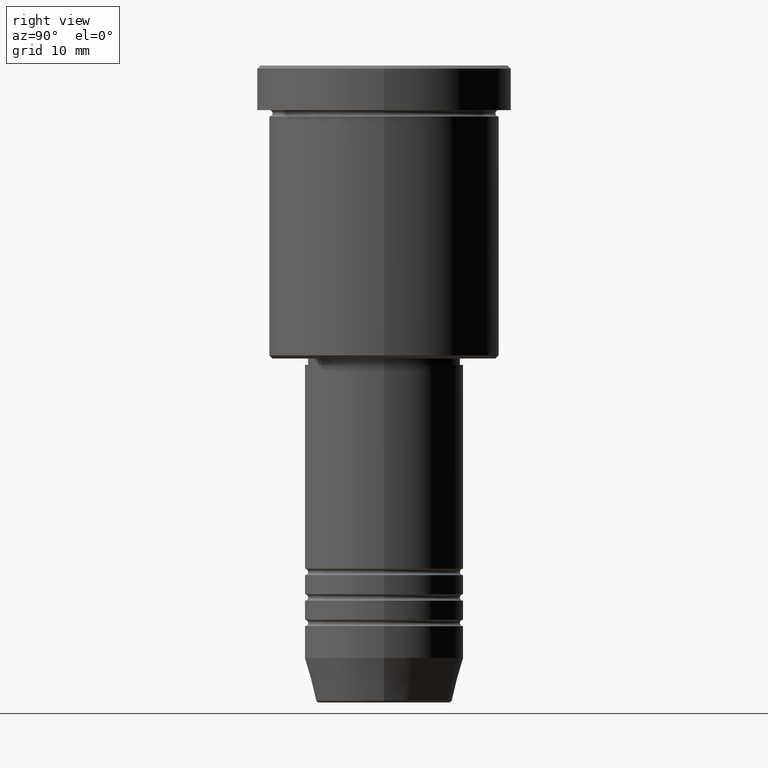
[diagram: clean part render]
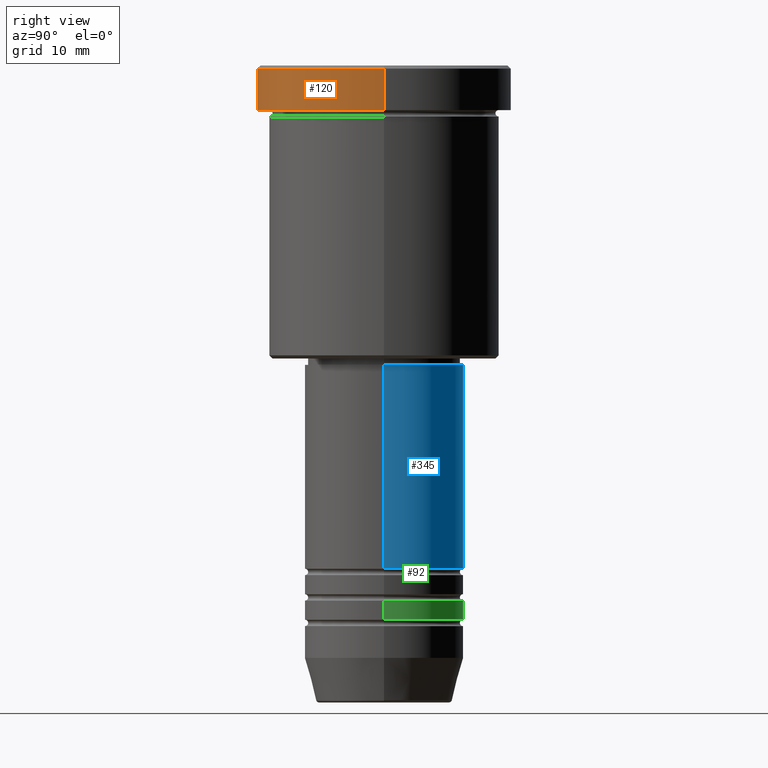
[diagram: same view with three faces highlighted in distinct colors, each labeled with its STEP entity id]
A machine part, right view with three faces highlighted in distinct colors.
Their STEP definitions:

[orange] entity #120 — the highlighted cylindrical surface (partial cylindrical patch) has radius 20 mm, axis along (-0, -0, 1).
#54 = CARTESIAN_POINT ( 'NONE',  ( 20.00000000000000000, 0.000000000000000000, -6.999999999999995559 ) ) ;
#64 = EDGE_CURVE ( 'NONE', #699, #356, #289, .T. ) ;
#68 = AXIS2_PLACEMENT_3D ( 'NONE', #824, #196, #365 ) ;
#86 = ORIENTED_EDGE ( 'NONE', *, *, #835, .T. ) ;
#120 = ADVANCED_FACE ( 'NONE', ( #933 ), #130, .T. ) ;
#122 = DIRECTION ( 'NONE',  ( 1.000000000000000000, 0.000000000000000000, 0.000000000000000000 ) ) ;
#130 = CYLINDRICAL_SURFACE ( 'NONE', #501, 20.00000000000000000 ) ;
#196 = DIRECTION ( 'NONE',  ( -0.000000000000000000, -0.000000000000000000, 1.000000000000000000 ) ) ;
#199 = CARTESIAN_POINT ( 'NONE',  ( 20.00000000000000000, 0.000000000000000000, 0.000000000000000000 ) ) ;
#221 = ORIENTED_EDGE ( 'NONE', *, *, #294, .F. ) ;
#257 = EDGE_LOOP ( 'NONE', ( #221, #374, #1029, #86 ) ) ;
#263 = LINE ( 'NONE', #952, #961 ) ;
#289 = LINE ( 'NONE', #199, #312 ) ;
#294 = EDGE_CURVE ( 'NONE', #997, #783, #263, .T. ) ;
#296 = CARTESIAN_POINT ( 'NONE',  ( -20.00000000000000000, 2.449293598294706513E-15, -6.999999999999995559 ) ) ;
#312 = VECTOR ( 'NONE', #679, 1000.000000000000000 ) ;
#356 = VERTEX_POINT ( 'NONE', #1129 ) ;
#365 = DIRECTION ( 'NONE',  ( 1.000000000000000000, 0.000000000000000000, 0.000000000000000000 ) ) ;
#374 = ORIENTED_EDGE ( 'NONE', *, *, #414, .T. ) ;
#401 = CARTESIAN_POINT ( 'NONE',  ( 0.000000000000000000, 0.000000000000000000, 0.000000000000000000 ) ) ;
#408 = CIRCLE ( 'NONE', #1179, 20.00000000000000000 ) ;
#414 = EDGE_CURVE ( 'NONE', #997, #699, #832, .T. ) ;
#501 = AXIS2_PLACEMENT_3D ( 'NONE', #401, #748, #122 ) ;
#545 = DIRECTION ( 'NONE',  ( 1.000000000000000000, 0.000000000000000000, 0.000000000000000000 ) ) ;
#679 = DIRECTION ( 'NONE',  ( -0.000000000000000000, -0.000000000000000000, 1.000000000000000000 ) ) ;
#695 = CARTESIAN_POINT ( 'NONE',  ( -20.00000000000000000, 2.449293598294706513E-15, -0.4999999999999831246 ) ) ;
#699 = VERTEX_POINT ( 'NONE', #54 ) ;
#748 = DIRECTION ( 'NONE',  ( -0.000000000000000000, -0.000000000000000000, 1.000000000000000000 ) ) ;
#783 = VERTEX_POINT ( 'NONE', #695 ) ;
#804 = CARTESIAN_POINT ( 'NONE',  ( 0.000000000000000000, 0.000000000000000000, -0.4999999999999831246 ) ) ;
#824 = CARTESIAN_POINT ( 'NONE',  ( 0.000000000000000000, 0.000000000000000000, -6.999999999999995559 ) ) ;
#832 = CIRCLE ( 'NONE', #68, 20.00000000000000000 ) ;
#835 = EDGE_CURVE ( 'NONE', #356, #783, #408, .T. ) ;
#862 = DIRECTION ( 'NONE',  ( -0.000000000000000000, -0.000000000000000000, 1.000000000000000000 ) ) ;
#885 = DIRECTION ( 'NONE',  ( 0.000000000000000000, 0.000000000000000000, -1.000000000000000000 ) ) ;
#933 = FACE_OUTER_BOUND ( 'NONE', #257, .T. ) ;
#952 = CARTESIAN_POINT ( 'NONE',  ( -20.00000000000000000, 2.449293598294706513E-15, 0.000000000000000000 ) ) ;
#961 = VECTOR ( 'NONE', #862, 1000.000000000000000 ) ;
#997 = VERTEX_POINT ( 'NONE', #296 ) ;
#1029 = ORIENTED_EDGE ( 'NONE', *, *, #64, .T. ) ;
#1129 = CARTESIAN_POINT ( 'NONE',  ( 20.00000000000000000, 0.000000000000000000, -0.4999999999999831246 ) ) ;
#1179 = AXIS2_PLACEMENT_3D ( 'NONE', #804, #885, #545 ) ;

[blue] entity #345 — the highlighted cylindrical surface (partial cylindrical patch) has radius 12.5 mm, axis along (-0, -0, 1).
#12 = VERTEX_POINT ( 'NONE', #428 ) ;
#44 = AXIS2_PLACEMENT_3D ( 'NONE', #247, #162, #615 ) ;
#50 = AXIS2_PLACEMENT_3D ( 'NONE', #1072, #159, #343 ) ;
#106 = CARTESIAN_POINT ( 'NONE',  ( 12.50000000000000000, 0.000000000000000000, -78.99999999999998579 ) ) ;
#115 = ORIENTED_EDGE ( 'NONE', *, *, #876, .F. ) ;
#121 = DIRECTION ( 'NONE',  ( -0.000000000000000000, -0.000000000000000000, 1.000000000000000000 ) ) ;
#159 = DIRECTION ( 'NONE',  ( -0.000000000000000000, -0.000000000000000000, 1.000000000000000000 ) ) ;
#162 = DIRECTION ( 'NONE',  ( -0.000000000000000000, -0.000000000000000000, 1.000000000000000000 ) ) ;
#247 = CARTESIAN_POINT ( 'NONE',  ( 0.000000000000000000, 0.000000000000000000, 0.000000000000000000 ) ) ;
#256 = CYLINDRICAL_SURFACE ( 'NONE', #44, 12.50000000000000000 ) ;
#300 = CARTESIAN_POINT ( 'NONE',  ( -12.50000000000000000, 1.530808498934191521E-15, 0.000000000000000000 ) ) ;
#321 = LINE ( 'NONE', #300, #760 ) ;
#335 = CIRCLE ( 'NONE', #50, 12.50000000000000000 ) ;
#343 = DIRECTION ( 'NONE',  ( 1.000000000000000000, 0.000000000000000000, 0.000000000000000000 ) ) ;
#345 = ADVANCED_FACE ( 'NONE', ( #538 ), #256, .T. ) ;
#393 = CIRCLE ( 'NONE', #1043, 12.50000000000000000 ) ;
#404 = DIRECTION ( 'NONE',  ( -0.000000000000000000, -0.000000000000000000, 1.000000000000000000 ) ) ;
#425 = VERTEX_POINT ( 'NONE', #106 ) ;
#428 = CARTESIAN_POINT ( 'NONE',  ( -12.50000000000000000, 1.530808498934191521E-15, -47.00000000000000000 ) ) ;
#430 = ORIENTED_EDGE ( 'NONE', *, *, #601, .F. ) ;
#469 = CARTESIAN_POINT ( 'NONE',  ( 12.50000000000000000, 0.000000000000000000, -47.00000000000000000 ) ) ;
#495 = CARTESIAN_POINT ( 'NONE',  ( 0.000000000000000000, 0.000000000000000000, -47.00000000000000000 ) ) ;
#508 = VERTEX_POINT ( 'NONE', #469 ) ;
#538 = FACE_OUTER_BOUND ( 'NONE', #956, .T. ) ;
#555 = DIRECTION ( 'NONE',  ( -0.000000000000000000, -0.000000000000000000, 1.000000000000000000 ) ) ;
#593 = EDGE_CURVE ( 'NONE', #932, #12, #321, .T. ) ;
#601 = EDGE_CURVE ( 'NONE', #508, #12, #393, .T. ) ;
#615 = DIRECTION ( 'NONE',  ( 1.000000000000000000, 0.000000000000000000, 0.000000000000000000 ) ) ;
#649 = CARTESIAN_POINT ( 'NONE',  ( 12.50000000000000000, 0.000000000000000000, 0.000000000000000000 ) ) ;
#726 = LINE ( 'NONE', #649, #982 ) ;
#760 = VECTOR ( 'NONE', #121, 1000.000000000000000 ) ;
#876 = EDGE_CURVE ( 'NONE', #425, #508, #726, .T. ) ;
#932 = VERTEX_POINT ( 'NONE', #977 ) ;
#956 = EDGE_LOOP ( 'NONE', ( #1146, #1030, #430, #115 ) ) ;
#977 = CARTESIAN_POINT ( 'NONE',  ( -12.50000000000000000, 1.530808498934191521E-15, -78.99999999999998579 ) ) ;
#982 = VECTOR ( 'NONE', #555, 1000.000000000000000 ) ;
#1030 = ORIENTED_EDGE ( 'NONE', *, *, #593, .T. ) ;
#1043 = AXIS2_PLACEMENT_3D ( 'NONE', #495, #404, #1107 ) ;
#1072 = CARTESIAN_POINT ( 'NONE',  ( 0.000000000000000000, 0.000000000000000000, -78.99999999999998579 ) ) ;
#1107 = DIRECTION ( 'NONE',  ( 1.000000000000000000, 0.000000000000000000, 0.000000000000000000 ) ) ;
#1146 = ORIENTED_EDGE ( 'NONE', *, *, #1148, .T. ) ;
#1148 = EDGE_CURVE ( 'NONE', #425, #932, #335, .T. ) ;

[green] entity #92 — the highlighted cylindrical surface (partial cylindrical patch) has radius 12.5 mm, axis along (-0, -0, 1).
#6 = DIRECTION ( 'NONE',  ( -0.000000000000000000, -0.000000000000000000, 1.000000000000000000 ) ) ;
#11 = LINE ( 'NONE', #652, #1085 ) ;
#55 = CARTESIAN_POINT ( 'NONE',  ( 12.50000000000000000, 0.000000000000000000, -86.99999999999998579 ) ) ;
#56 = EDGE_CURVE ( 'NONE', #299, #464, #66, .T. ) ;
#66 = CIRCLE ( 'NONE', #523, 12.50000000000000000 ) ;
#69 = DIRECTION ( 'NONE',  ( 1.000000000000000000, 0.000000000000000000, 0.000000000000000000 ) ) ;
#85 = EDGE_LOOP ( 'NONE', ( #107, #244, #803, #904 ) ) ;
#92 = ADVANCED_FACE ( 'NONE', ( #399 ), #1041, .T. ) ;
#107 = ORIENTED_EDGE ( 'NONE', *, *, #56, .T. ) ;
#205 = VERTEX_POINT ( 'NONE', #308 ) ;
#244 = ORIENTED_EDGE ( 'NONE', *, *, #1098, .T. ) ;
#299 = VERTEX_POINT ( 'NONE', #55 ) ;
#308 = CARTESIAN_POINT ( 'NONE',  ( -12.50000000000000000, 1.530808498934191521E-15, -83.99999999999998579 ) ) ;
#319 = DIRECTION ( 'NONE',  ( -0.000000000000000000, -0.000000000000000000, 1.000000000000000000 ) ) ;
#353 = EDGE_CURVE ( 'NONE', #632, #205, #405, .T. ) ;
#381 = CARTESIAN_POINT ( 'NONE',  ( -12.50000000000000000, 1.530808498934191521E-15, -86.99999999999998579 ) ) ;
#389 = DIRECTION ( 'NONE',  ( -0.000000000000000000, -0.000000000000000000, 1.000000000000000000 ) ) ;
#399 = FACE_OUTER_BOUND ( 'NONE', #85, .T. ) ;
#402 = EDGE_CURVE ( 'NONE', #299, #632, #731, .T. ) ;
#405 = CIRCLE ( 'NONE', #581, 12.50000000000000000 ) ;
#464 = VERTEX_POINT ( 'NONE', #381 ) ;
#523 = AXIS2_PLACEMENT_3D ( 'NONE', #1084, #6, #1095 ) ;
#581 = AXIS2_PLACEMENT_3D ( 'NONE', #795, #888, #69 ) ;
#589 = DIRECTION ( 'NONE',  ( 1.000000000000000000, 0.000000000000000000, 0.000000000000000000 ) ) ;
#632 = VERTEX_POINT ( 'NONE', #852 ) ;
#652 = CARTESIAN_POINT ( 'NONE',  ( -12.50000000000000000, 1.530808498934191521E-15, 0.000000000000000000 ) ) ;
#659 = CARTESIAN_POINT ( 'NONE',  ( 12.50000000000000000, 0.000000000000000000, 0.000000000000000000 ) ) ;
#731 = LINE ( 'NONE', #659, #739 ) ;
#738 = AXIS2_PLACEMENT_3D ( 'NONE', #847, #319, #589 ) ;
#739 = VECTOR ( 'NONE', #1088, 1000.000000000000000 ) ;
#795 = CARTESIAN_POINT ( 'NONE',  ( 0.000000000000000000, 0.000000000000000000, -83.99999999999998579 ) ) ;
#803 = ORIENTED_EDGE ( 'NONE', *, *, #353, .F. ) ;
#847 = CARTESIAN_POINT ( 'NONE',  ( 0.000000000000000000, 0.000000000000000000, 0.000000000000000000 ) ) ;
#852 = CARTESIAN_POINT ( 'NONE',  ( 12.50000000000000000, 0.000000000000000000, -83.99999999999998579 ) ) ;
#888 = DIRECTION ( 'NONE',  ( -0.000000000000000000, -0.000000000000000000, 1.000000000000000000 ) ) ;
#904 = ORIENTED_EDGE ( 'NONE', *, *, #402, .F. ) ;
#1041 = CYLINDRICAL_SURFACE ( 'NONE', #738, 12.50000000000000000 ) ;
#1084 = CARTESIAN_POINT ( 'NONE',  ( 0.000000000000000000, 0.000000000000000000, -86.99999999999998579 ) ) ;
#1085 = VECTOR ( 'NONE', #389, 1000.000000000000000 ) ;
#1088 = DIRECTION ( 'NONE',  ( -0.000000000000000000, -0.000000000000000000, 1.000000000000000000 ) ) ;
#1095 = DIRECTION ( 'NONE',  ( 1.000000000000000000, 0.000000000000000000, 0.000000000000000000 ) ) ;
#1098 = EDGE_CURVE ( 'NONE', #464, #205, #11, .T. ) ;